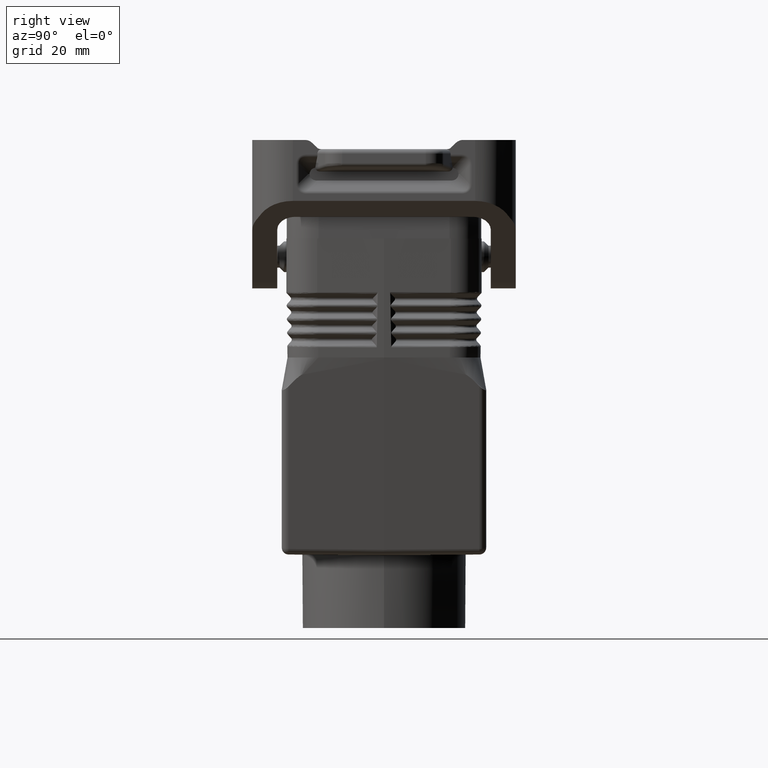
[diagram: clean part render]
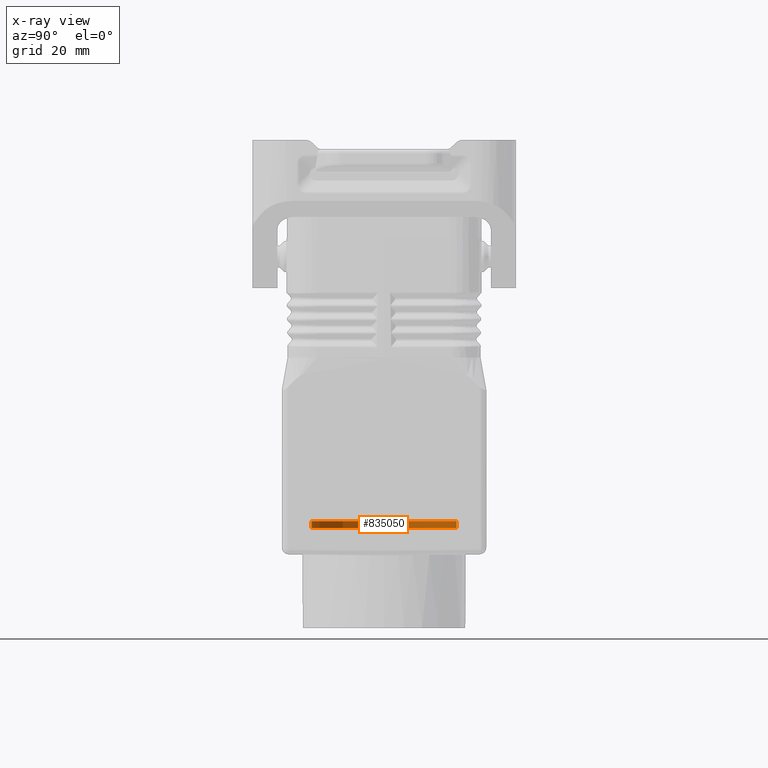
[diagram: x-ray — body ghosted, one internal face saturated and labeled with its STEP entity id]
A machine part, right view, then the same camera in x-ray: the body is ghosted and one INTERNAL B-rep face — a face not visible from any outside direction — is saturated and labeled: STEP entity #835050.
In plain terms, the highlighted cylindrical surface (partial cylindrical patch) has radius 16 mm, axis along (0, 0, 1).
Its self-contained STEP definition (entity closure, byte-faithful):
#354490=CARTESIAN_POINT('',(95.6199999999998,27.41,64.));
#354500=DIRECTION('',(-2.4980018054066E-16,2.4980018054066E-16,-1.));
#354510=DIRECTION('',(-1.,0.,2.4980018054066E-16));
#354520=AXIS2_PLACEMENT_3D('',#354490,#354500,#354510);
#354530=CIRCLE('',#354520,16.);
#354540=CARTESIAN_POINT('',(79.6199999999998,27.41,64.));
#354550=VERTEX_POINT('',#354540);
#354560=CARTESIAN_POINT('',(111.62,27.41,64.));
#354570=VERTEX_POINT('',#354560);
#354580=EDGE_CURVE('',#354550,#354570,#354530,.T.);
#828560=CARTESIAN_POINT('',(111.62,27.41,68.5));
#828570=DIRECTION('',(-2.4980018054066E-16,2.4980018054066E-16,-1.));
#828580=VECTOR('',#828570,1.);
#828590=LINE('',#828560,#828580);
#828600=CARTESIAN_POINT('',(111.62,27.41,62.5));
#828610=VERTEX_POINT('',#828600);
#828620=EDGE_CURVE('',#354570,#828610,#828590,.T.);
#828640=CARTESIAN_POINT('',(95.6199999999998,27.41,62.5));
#828650=DIRECTION('',(-2.4980018054066E-16,2.4980018054066E-16,-1.));
#828660=DIRECTION('',(-1.,0.,2.4980018054066E-16));
#828670=AXIS2_PLACEMENT_3D('',#828640,#828650,#828660);
#828680=CIRCLE('',#828670,16.);
#828690=CARTESIAN_POINT('',(79.6199999999998,27.41,62.5));
#828700=VERTEX_POINT('',#828690);
#828730=CARTESIAN_POINT('',(79.6199999999998,27.41,68.5));
#828740=DIRECTION('',(-2.4980018054066E-16,2.4980018054066E-16,-1.));
#828750=VECTOR('',#828740,1.);
#828760=LINE('',#828730,#828750);
#828770=EDGE_CURVE('',#354550,#828700,#828760,.T.);
#830780=EDGE_CURVE('',#828700,#828610,#828680,.T.);
#834940=CARTESIAN_POINT('',(95.6199999999998,27.41,68.5));
#834950=DIRECTION('',(-2.4980018054066E-16,2.4980018054066E-16,-1.));
#834960=DIRECTION('',(-1.,0.,2.4980018054066E-16));
#834970=AXIS2_PLACEMENT_3D('',#834940,#834950,#834960);
#834980=CYLINDRICAL_SURFACE('',#834970,16.);
#834990=ORIENTED_EDGE('',*,*,#830780,.F.);
#835000=ORIENTED_EDGE('',*,*,#828620,.T.);
#835010=ORIENTED_EDGE('',*,*,#354580,.T.);
#835020=ORIENTED_EDGE('',*,*,#828770,.F.);
#835030=EDGE_LOOP('',(#835020,#835010,#835000,#834990));
#835040=FACE_OUTER_BOUND('',#835030,.T.);
#835050=ADVANCED_FACE('',(#835040),#834980,.T.);